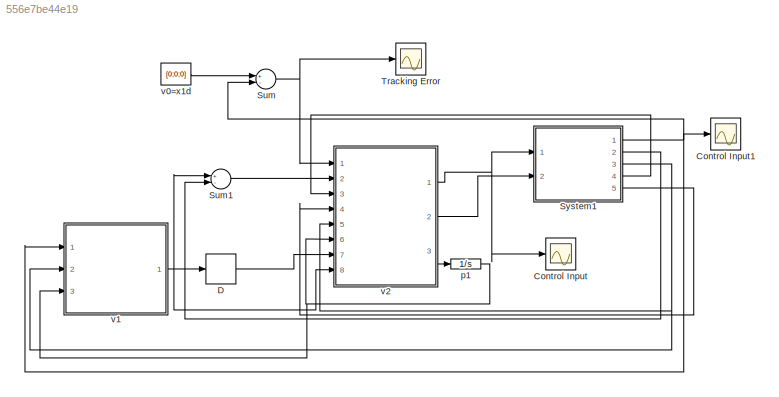
MODEL slx_556e7be44e19
KIND model
CONFIG AbsTol = auto
CONFIG EnableMultiTasking = off
CONFIG FixedStep = auto
CONFIG MaxStep = auto
CONFIG MinStep = auto
CONFIG RelTol = 1e-3
CONFIG SampleTimeConstraint = Unconstrained
CONFIG Solver = VariableStepAuto
CONFIG SolverName = VariableStepAuto
CONFIG StartTime = 0.0
CONFIG StopTime = 10.0
BLOCK [Scope] Control Input
  NumInputPorts = 1
  Ports = [1]
  ScopeSpecificationString = Simulink.scopes.TimeScopeBlockCfg('CurrentConfiguration', extmgr.ConfigurationSet(extmgr.Configuration('Core','General UI',true),extmgr.Configuration('Core','Source UI',true),extmgr.Configuration('Sources','WiredSimulink',true,'DataLoggingVariableName','ScopeData1'),extmgr.Configuration('Visuals','Time Domain',true,'SerializedDisplays',{struct('MinYLimReal','-25382.59289','MaxYLimReal','-2848.6357...<+1441ch>
BLOCK [Scope] Control Input1
  NumInputPorts = 1
  Ports = [1]
  ScopeSpecificationString = Simulink.scopes.TimeScopeBlockCfg('CurrentConfiguration', extmgr.ConfigurationSet(extmgr.Configuration('Core','General UI',true),extmgr.Configuration('Core','Source UI',true),extmgr.Configuration('Sources','WiredSimulink',true,'DataLoggingVariableName','ScopeData1'),extmgr.Configuration('Visuals','Time Domain',true,'SerializedDisplays',{struct('MinYLimReal','-25382.59289','MaxYLimReal','-2848.6357...<+1441ch>
BLOCK [Derivative] D
BLOCK [Sum] Sum
  InputSameDT = off
  Inputs = +-
  OutDataTypeStr = Inherit: Inherit via internal rule
  Ports = [2, 1]
  SaturateOnIntegerOverflow = off
BLOCK [Sum] Sum1
  InputSameDT = off
  Inputs = +-
  OutDataTypeStr = Inherit: Inherit via internal rule
  Ports = [2, 1]
  SaturateOnIntegerOverflow = off
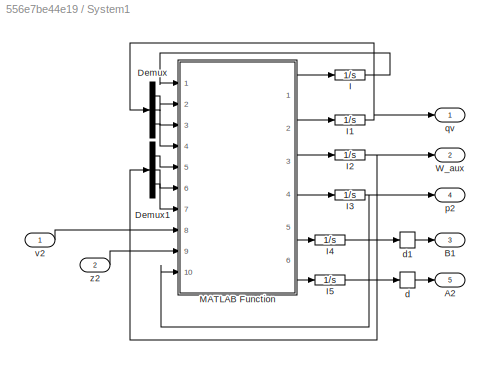
BLOCK [SubSystem] System1
  Ports = [2, 5]
  RequestExecContextInheritance = off
  Variant = off
BLOCK [Outport] System1/A2
  IconDisplay = Port number
  Port = 5
BLOCK [Outport] System1/B1
  IconDisplay = Port number
  Port = 3
BLOCK [Demux] System1/Demux
  DisplayOption = bar
  Outputs = 3
  Ports = [1, 3]
BLOCK [Demux] System1/Demux1
  DisplayOption = bar
  Outputs = 3
  Ports = [1, 3]
BLOCK [Integrator] System1/I
  InitialCondition = 0.8224
  Ports = [1, 1]
BLOCK [Integrator] System1/I1
  InitialCondition = [0.2226 0.4397 0.3604]'
  Ports = [1, 1]
BLOCK [Integrator] System1/I2
  InitialCondition = [-1.5 -5.8 -6.8]'
  Ports = [1, 1]
BLOCK [Integrator] System1/I3
  InitialCondition = [1 0 0;0 1 0;0 0 1]
  Ports = [1, 1]
BLOCK [Integrator] System1/I4
  InitialCondition = [1 0 0;0 1 0;0 0 1]
  Ports = [1, 1]
BLOCK [Integrator] System1/I5
  InitialCondition = [1 0 0;0 1 0;0 0 1]
  Ports = [1, 1]
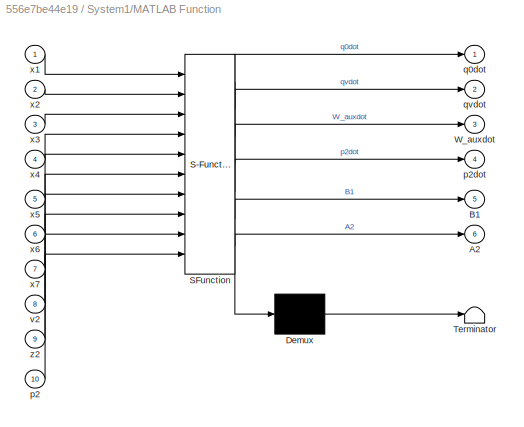
BLOCK [SubSystem] System1/MATLAB Function
  ErrorFcn = Stateflow.Translate.translate
  PermitHierarchicalResolution = ExplicitOnly
  Ports = [10, 6]
  RequestExecContextInheritance = off
  SFBlockType = MATLAB Function
  TreatAsAtomicUnit = on
  Variant = off
BLOCK [Demux] System1/MATLAB Function/ Demux 
  Outputs = 1
  Ports = [1, 1]
BLOCK [S-Function] System1/MATLAB Function/ SFunction 
  EnableBusSupport = on
  FunctionName = sf_sfun
  PortCounts = [10 7]
  Ports = [10, 7]
  SFcnIsStateOwnerBlock = off
  SFunctionDeploymentMode = off
  Tag = Stateflow S-Function OBC 4
BLOCK [Terminator] System1/MATLAB Function/ Terminator 
BLOCK [Outport] System1/MATLAB Function/A2
  IconDisplay = Port number
  Port = 6
BLOCK [Outport] System1/MATLAB Function/B1
  IconDisplay = Port number
  Port = 5
BLOCK [Outport] System1/MATLAB Function/W_auxdot
  IconDisplay = Port number
  Port = 3
BLOCK [Inport] System1/MATLAB Function/p2
  IconDisplay = Port number
  Port = 10
BLOCK [Outport] System1/MATLAB Function/p2dot
  IconDisplay = Port number
  Port = 4
BLOCK [Outport] System1/MATLAB Function/q0dot
  IconDisplay = Port number
BLOCK [Outport] System1/MATLAB Function/qvdot
  IconDisplay = Port number
  Port = 2
BLOCK [Inport] System1/MATLAB Function/v2
  IconDisplay = Port number
  Port = 8
BLOCK [Inport] System1/MATLAB Function/x1
  IconDisplay = Port number
BLOCK [Inport] System1/MATLAB Function/x2
  IconDisplay = Port number
  Port = 2
BLOCK [Inport] System1/MATLAB Function/x3
  IconDisplay = Port number
  Port = 3
BLOCK [Inport] System1/MATLAB Function/x4
  IconDisplay = Port number
  Port = 4
BLOCK [Inport] System1/MATLAB Function/x5
  IconDisplay = Port number
  Port = 5
BLOCK [Inport] System1/MATLAB Function/x6
  IconDisplay = Port number
  Port = 6
BLOCK [Inport] System1/MATLAB Function/x7
  IconDisplay = Port number
  Port = 7
BLOCK [Inport] System1/MATLAB Function/z2
  IconDisplay = Port number
  Port = 9
BLOCK [Outport] System1/W_aux
  IconDisplay = Port number
  Port = 2
BLOCK [Derivative] System1/d
BLOCK [Derivative] System1/d1
BLOCK [Outport] System1/p2
  IconDisplay = Port number
  Port = 4
BLOCK [Outport] System1/qv
  IconDisplay = Port number
BLOCK [Inport] System1/v2
  IconDisplay = Port number
BLOCK [Inport] System1/z2
  IconDisplay = Port number
  Port = 2
BLOCK [Scope] Tracking Error
  NumInputPorts = 1
  Ports = [1]
  ScopeSpecificationString = Simulink.scopes.TimeScopeBlockCfg('CurrentConfiguration', extmgr.ConfigurationSet(extmgr.Configuration('Core','General UI',true),extmgr.Configuration('Core','Source UI',true),extmgr.Configuration('Sources','WiredSimulink',true),extmgr.Configuration('Visuals','Time Domain',true,'SerializedDisplays',{struct('MinYLimReal','-0.46684','MaxYLimReal','-0.19546','YLabelReal','','MinYLimMag','0.00000','Max...<+1387ch>
BLOCK [Integrator] p1
  InitialCondition = [1 0 0;0 1 0;0 0 1]
  Ports = [1, 1]
BLOCK [Constant] v0=x1d
  Value = [0;0;0]
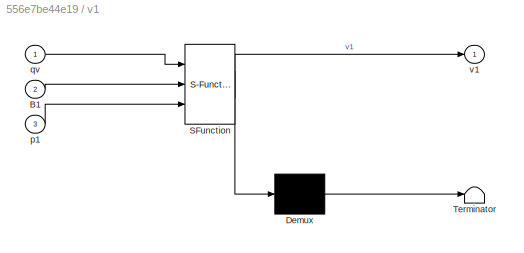
BLOCK [SubSystem] v1
  ErrorFcn = Stateflow.Translate.translate
  PermitHierarchicalResolution = ExplicitOnly
  Ports = [3, 1]
  RequestExecContextInheritance = off
  SFBlockType = MATLAB Function
  TreatAsAtomicUnit = on
  Variant = off
BLOCK [Demux] v1/ Demux 
  Outputs = 1
  Ports = [1, 1]
BLOCK [S-Function] v1/ SFunction 
  EnableBusSupport = on
  FunctionName = sf_sfun
  PortCounts = [3 2]
  Ports = [3, 2]
  SFcnIsStateOwnerBlock = off
  SFunctionDeploymentMode = off
  Tag = Stateflow S-Function OBC 3
BLOCK [Terminator] v1/ Terminator 
BLOCK [Inport] v1/B1
  IconDisplay = Port number
  Port = 2
BLOCK [Inport] v1/p1
  IconDisplay = Port number
  Port = 3
BLOCK [Inport] v1/qv
  IconDisplay = Port number
BLOCK [Outport] v1/v1
  IconDisplay = Port number
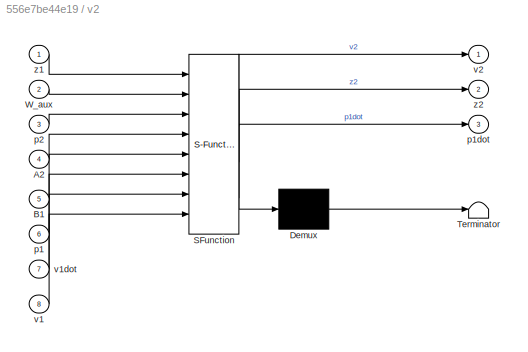
BLOCK [SubSystem] v2
  ErrorFcn = Stateflow.Translate.translate
  PermitHierarchicalResolution = ExplicitOnly
  Ports = [8, 3]
  RequestExecContextInheritance = off
  SFBlockType = MATLAB Function
  TreatAsAtomicUnit = on
  Variant = off
BLOCK [Demux] v2/ Demux 
  Outputs = 1
  Ports = [1, 1]
BLOCK [S-Function] v2/ SFunction 
  EnableBusSupport = on
  FunctionName = sf_sfun
  PortCounts = [8 4]
  Ports = [8, 4]
  SFcnIsStateOwnerBlock = off
  SFunctionDeploymentMode = off
  Tag = Stateflow S-Function OBC 1
BLOCK [Terminator] v2/ Terminator 
BLOCK [Inport] v2/A2
  IconDisplay = Port number
  Port = 4
BLOCK [Inport] v2/B1
  IconDisplay = Port number
  Port = 5
BLOCK [Inport] v2/W_aux
  IconDisplay = Port number
  Port = 2
BLOCK [Inport] v2/p1
  IconDisplay = Port number
  Port = 6
BLOCK [Outport] v2/p1dot
  IconDisplay = Port number
  Port = 3
BLOCK [Inport] v2/p2
  IconDisplay = Port number
  Port = 3
BLOCK [Inport] v2/v1
  IconDisplay = Port number
  Port = 8
BLOCK [Inport] v2/v1dot
  IconDisplay = Port number
  Port = 7
BLOCK [Outport] v2/v2
  IconDisplay = Port number
BLOCK [Inport] v2/z1
  IconDisplay = Port number
BLOCK [Outport] v2/z2
  IconDisplay = Port number
  Port = 2
LINE D:1 -> v2:7
LINE Sum1:1 -> v2:2
NET Sum:1 -> Tracking Error:1, v2:1
LINE System1/Demux1:1 -> System1/MATLAB Function:5
LINE System1/Demux1:2 -> System1/MATLAB Function:6
LINE System1/Demux1:3 -> System1/MATLAB Function:7
LINE System1/Demux:1 -> System1/MATLAB Function:2
LINE System1/Demux:2 -> System1/MATLAB Function:3
LINE System1/Demux:3 -> System1/MATLAB Function:4
NET System1/I1:1 -> System1/Demux:1, System1/qv:1
NET System1/I2:1 -> System1/Demux1:1, System1/W_aux:1
NET System1/I3:1 -> System1/MATLAB Function:10, System1/p2:1
LINE System1/I4:1 -> System1/d1:1
LINE System1/I5:1 -> System1/d:1
LINE System1/I:1 -> System1/MATLAB Function:1
LINE System1/MATLAB Function:1 -> System1/I:1
LINE System1/MATLAB Function:2 -> System1/I1:1
LINE System1/MATLAB Function:3 -> System1/I2:1
LINE System1/MATLAB Function:4 -> System1/I3:1
LINE System1/MATLAB Function:5 -> System1/I4:1
LINE System1/MATLAB Function:6 -> System1/I5:1
LINE System1/d1:1 -> System1/B1:1
LINE System1/d:1 -> System1/A2:1
LINE System1/v2:1 -> System1/MATLAB Function:8
LINE System1/z2:1 -> System1/MATLAB Function:9
NET System1:1 -> Control Input1:1, Sum:2, v1:1
LINE System1:2 -> Sum1:2
NET System1:3 -> v1:2, v2:5
LINE System1:4 -> v2:3
LINE System1:5 -> v2:4
NET p1:1 -> v1:3, v2:6
LINE v0=x1d:1 -> Sum:1
NET v1:1 -> D:1, Sum1:1, v2:8
NET v2:1 -> Control Input:1, System1:1
LINE v2:2 -> System1:2
LINE v2:3 -> p1:1
note: NET lines group one-source signal fan-out (src -> all destinations, sorted); 1:1 wires keep LINE
CHART v2 states=1 transitions=1
  STATE_LABEL 'eML_blk_kernel()'
  STATE_LABEL "SCRIPT:\nfunction [v2,z2,p1dot] = fcn(z1,W_aux,p2,A2,B1,p1,v1dot,v1)\nQ0=0.8224;\nIR2=33.3333*eye(3,3);\nR1=0.1*eye(3,3);\nQ1=eye(3,3);\ngamma= 150;\nB2=102.0408*eye(3,3);%equation(20)\nv=[0.0098,0.0098,0.0176];\nB22=102.0408*eye(3,3);\nJ=diag(v);\nz2=v1-W_aux;\nW2=1/(2*gamma^2)*B22'*p2*z2;%equation(88)\np1dot=p1*B1*R1\\B1'*p1-Q1;%equation(97)\nv2=IR2*B2'*p2*z2+J*v1dot*sign(Q0)-J*A2*v1*sign(Q0)+J*p2\\B1'*p1*z1-J*...<+7ch>"
CHART v1 states=1 transitions=1
  STATE_LABEL 'eML_blk_kernel()'
  STATE_LABEL "SCRIPT:\nfunction v1 = fcn(qv,B1,p1)\nv1=[0;0;0];\nQ0=0.8224;\nR1=0.1*eye(3,3);\nv1=-inv(R1)*B1'*p1*qv*sign(Q0);%equation(84)\n"
CHART System1/MATLAB Function states=1 transitions=1
  STATE_LABEL 'eML_blk_kernel()'
  STATE_LABEL 'SCRIPT:\nfunction [q0dot,qvdot,W_auxdot,p2dot,B1,A2] = fcn(x1,x2,x3,x4,x5,x6,x7,v2,z2,p2)\nQ0=0.8224;\nR1=0.1*eye(3,3);\nv=[0.0098,0.0098,0.0176];\nJ=diag(v);\n%R2=0.03*eye(3,3);\nIR2=33.3333*eye(3,3);\ngamma= 150;\nQ1=eye(3,3);\nQ2=eye(3,3);\nB2=102.0408*eye(3,3);%equation(20)\nG2=102.0408*eye(3,3);\nB22=102.0408*eye(3,3);\nW_d=[0;0;0];\n%-------------------------------------------------------------------------...<+845ch>'
